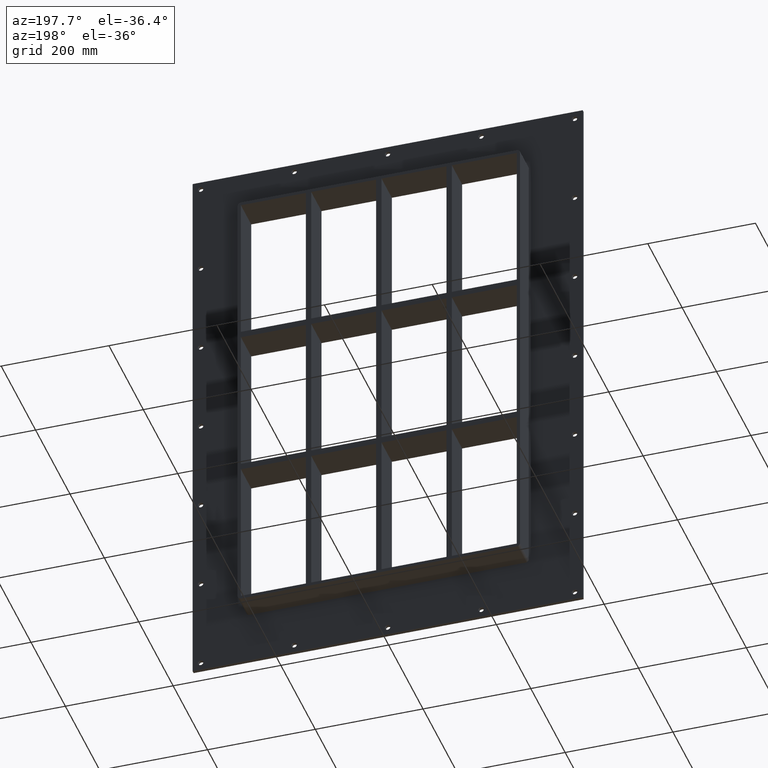
[diagram: clean part render]
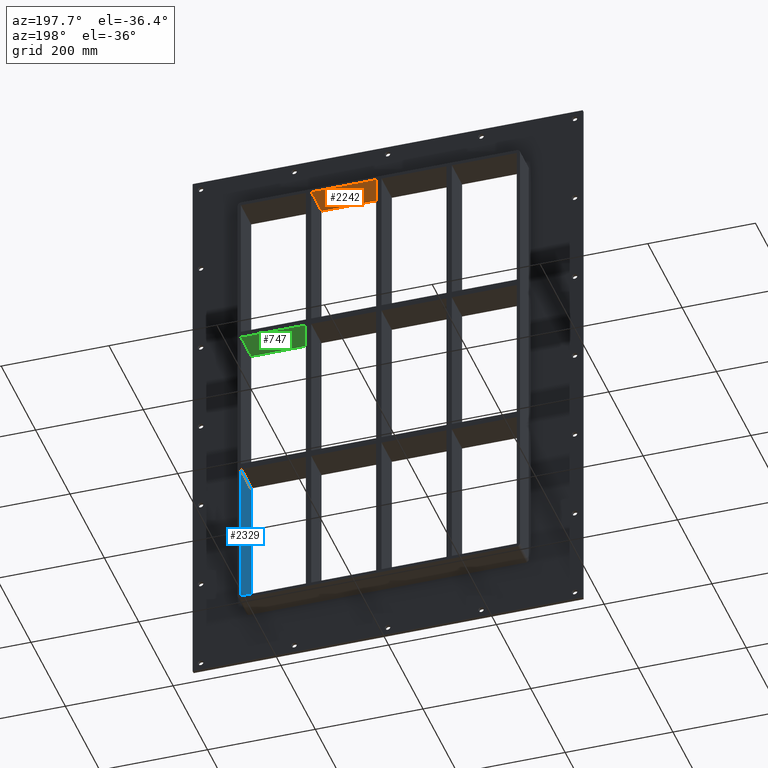
[diagram: same view with three faces highlighted in distinct colors, each labeled with its STEP entity id]
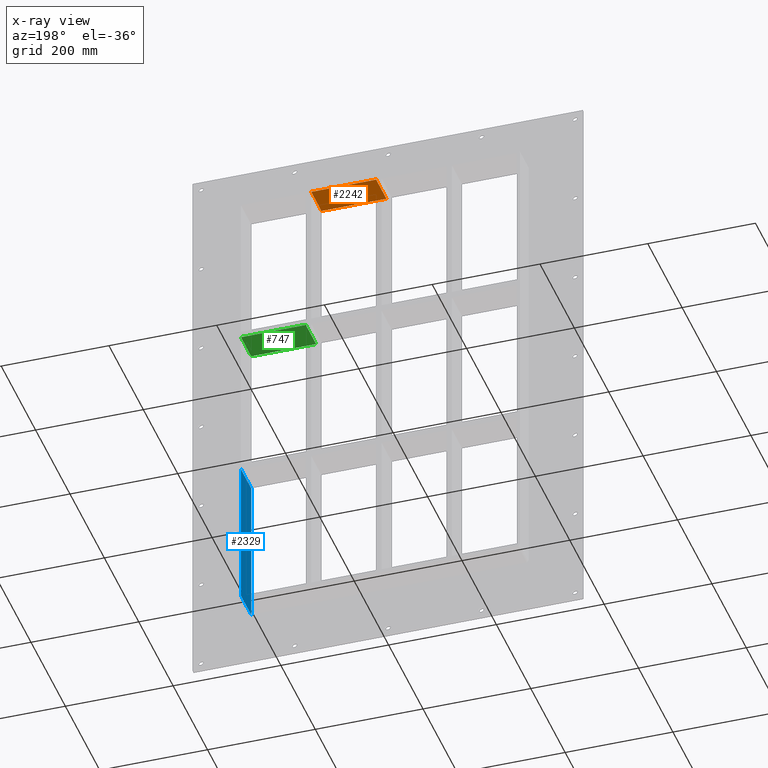
[diagram: x-ray of the same camera — body ghosted, the three highlighted faces saturated]
A machine part, auxiliary view with three faces highlighted in distinct colors.
The next image is the same camera in x-ray (body ghosted, the three faces saturated) — at least one of them is partly hidden behind the body in this view.
Their STEP definitions:

[orange] entity #2242 — the highlighted planar face has unit normal (0, 0, 1).
#1047=CARTESIAN_POINT('',(125.49999999999858,-3.0,429.00000000000006));
#1048=VERTEX_POINT('',#1047);
#1055=CARTESIAN_POINT('',(125.49999999999858,57.0,429.00000000000006));
#1056=VERTEX_POINT('',#1055);
#1057=CARTESIAN_POINT('',(125.49999999999861,57.000000000000007,429.00000000000011));
#1058=DIRECTION('',(0.0,-1.0,0.0));
#1059=VECTOR('',#1058,60.000000000000007);
#1060=LINE('',#1057,#1059);
#1061=EDGE_CURVE('',#1056,#1048,#1060,.T.);
#1140=CARTESIAN_POINT('',(5.000000000007283,57.0,429.00000000000006));
#1141=VERTEX_POINT('',#1140);
#1148=CARTESIAN_POINT('',(5.000000000007283,-3.0,429.00000000000006));
#1149=VERTEX_POINT('',#1148);
#1150=CARTESIAN_POINT('',(5.000000000007283,-3.0,429.00000000000011));
#1151=DIRECTION('',(0.0,1.0,0.0));
#1152=VECTOR('',#1151,60.000000000000007);
#1153=LINE('',#1150,#1152);
#1154=EDGE_CURVE('',#1149,#1141,#1153,.T.);
#1363=CARTESIAN_POINT('',(125.49999999999858,57.0,429.00000000000011));
#1364=DIRECTION('',(-1.0,0.0,0.0));
#1365=VECTOR('',#1364,120.4999999999913);
#1366=LINE('',#1363,#1365);
#1367=EDGE_CURVE('',#1056,#1141,#1366,.T.);
#2013=CARTESIAN_POINT('',(5.000000000007276,-3.0,429.00000000000011));
#2014=DIRECTION('',(1.0,0.0,0.0));
#2015=VECTOR('',#2014,120.4999999999913);
#2016=LINE('',#2013,#2015);
#2017=EDGE_CURVE('',#1149,#1048,#2016,.T.);
#2231=CARTESIAN_POINT('',(-256.0,0.0,429.00000000000011));
#2232=DIRECTION('',(0.0,0.0,1.0));
#2233=DIRECTION('',(1.0,0.0,0.0));
#2234=AXIS2_PLACEMENT_3D('',#2231,#2232,#2233);
#2235=PLANE('',#2234);
#2236=ORIENTED_EDGE('',*,*,#1061,.T.);
#2237=ORIENTED_EDGE('',*,*,#2017,.F.);
#2238=ORIENTED_EDGE('',*,*,#1154,.T.);
#2239=ORIENTED_EDGE('',*,*,#1367,.F.);
#2240=EDGE_LOOP('',(#2236,#2237,#2238,#2239));
#2241=FACE_OUTER_BOUND('',#2240,.T.);
#2242=ADVANCED_FACE('',(#2241),#2235,.F.);

[blue] entity #2329 — the highlighted planar face has unit normal (1, 0, 0).
#1567=CARTESIAN_POINT('',(256.0,57.0,-429.00000000000006));
#1568=VERTEX_POINT('',#1567);
#1575=CARTESIAN_POINT('',(256.00000000000358,57.0,-151.00000000000929));
#1576=VERTEX_POINT('',#1575);
#1577=CARTESIAN_POINT('',(256.0,57.0,-429.00000000000011));
#1578=DIRECTION('',(0.0,0.0,1.0));
#1579=VECTOR('',#1578,277.99999999999091);
#1580=LINE('',#1577,#1579);
#1581=EDGE_CURVE('',#1568,#1576,#1580,.T.);
#1867=CARTESIAN_POINT('',(256.0,-3.0,-429.00000000000006));
#1868=VERTEX_POINT('',#1867);
#1875=CARTESIAN_POINT('',(256.0,56.999999999999993,-429.00000000000006));
#1876=DIRECTION('',(0.0,-1.0,0.0));
#1877=VECTOR('',#1876,59.999999999999993);
#1878=LINE('',#1875,#1877);
#1879=EDGE_CURVE('',#1568,#1868,#1878,.T.);
#2092=CARTESIAN_POINT('',(256.00000000000364,-3.0,-151.00000000000929));
#2093=VERTEX_POINT('',#2092);
#2100=CARTESIAN_POINT('',(256.0,-3.0,-151.00000000000921));
#2101=DIRECTION('',(0.0,0.0,-1.0));
#2102=VECTOR('',#2101,277.99999999999091);
#2103=LINE('',#2100,#2102);
#2104=EDGE_CURVE('',#2093,#1868,#2103,.T.);
#2151=CARTESIAN_POINT('',(256.0,-3.0,-151.00000000000927));
#2152=DIRECTION('',(0.0,1.0,0.0));
#2153=VECTOR('',#2152,60.000000000000007);
#2154=LINE('',#2151,#2153);
#2155=EDGE_CURVE('',#2093,#1576,#2154,.T.);
#2318=CARTESIAN_POINT('',(256.0,0.0,429.00000000000011));
#2319=DIRECTION('',(1.0,0.0,0.0));
#2320=DIRECTION('',(0.0,0.0,-1.0));
#2321=AXIS2_PLACEMENT_3D('',#2318,#2319,#2320);
#2322=PLANE('',#2321);
#2323=ORIENTED_EDGE('',*,*,#2155,.T.);
#2324=ORIENTED_EDGE('',*,*,#1581,.F.);
#2325=ORIENTED_EDGE('',*,*,#1879,.T.);
#2326=ORIENTED_EDGE('',*,*,#2104,.F.);
#2327=EDGE_LOOP('',(#2323,#2324,#2325,#2326));
#2328=FACE_OUTER_BOUND('',#2327,.T.);
#2329=ADVANCED_FACE('',(#2328),#2322,.F.);

[green] entity #747 — the highlighted planar face has unit normal (0, 0, -1).
#708=CARTESIAN_POINT('',(256.00000000000364,-3.0,138.99999999999071));
#709=DIRECTION('',(0.0,0.0,-1.0));
#710=DIRECTION('',(-1.0,0.0,0.0));
#711=AXIS2_PLACEMENT_3D('',#708,#709,#710);
#712=PLANE('',#711);
#713=CARTESIAN_POINT('',(135.50000000000728,57.0,138.99999999999071));
#714=VERTEX_POINT('',#713);
#715=CARTESIAN_POINT('',(135.50000000000728,-3.0,138.99999999999071));
#716=VERTEX_POINT('',#715);
#717=CARTESIAN_POINT('',(135.50000000000728,57.0,138.99999999999071));
#718=DIRECTION('',(0.0,-1.0,0.0));
#719=VECTOR('',#718,60.0);
#720=LINE('',#717,#719);
#721=EDGE_CURVE('',#714,#716,#720,.T.);
#722=ORIENTED_EDGE('',*,*,#721,.F.);
#723=CARTESIAN_POINT('',(256.00000000000358,57.0,138.99999999999071));
#724=VERTEX_POINT('',#723);
#725=CARTESIAN_POINT('',(256.00000000000364,57.0,138.99999999999071));
#726=DIRECTION('',(-1.0,0.0,0.0));
#727=VECTOR('',#726,120.49999999999636);
#728=LINE('',#725,#727);
#729=EDGE_CURVE('',#724,#714,#728,.T.);
#730=ORIENTED_EDGE('',*,*,#729,.F.);
#731=CARTESIAN_POINT('',(256.00000000000364,-3.0,138.99999999999071));
#732=VERTEX_POINT('',#731);
#733=CARTESIAN_POINT('',(256.0,-3.0,138.99999999999073));
#734=DIRECTION('',(0.0,1.0,0.0));
#735=VECTOR('',#734,60.000000000000007);
#736=LINE('',#733,#735);
#737=EDGE_CURVE('',#732,#724,#736,.T.);
#738=ORIENTED_EDGE('',*,*,#737,.F.);
#739=CARTESIAN_POINT('',(256.00000000000364,-3.0,138.99999999999071));
#740=DIRECTION('',(-1.0,0.0,0.0));
#741=VECTOR('',#740,120.49999999999636);
#742=LINE('',#739,#741);
#743=EDGE_CURVE('',#732,#716,#742,.T.);
#744=ORIENTED_EDGE('',*,*,#743,.T.);
#745=EDGE_LOOP('',(#722,#730,#738,#744));
#746=FACE_OUTER_BOUND('',#745,.T.);
#747=ADVANCED_FACE('',(#746),#712,.T.);